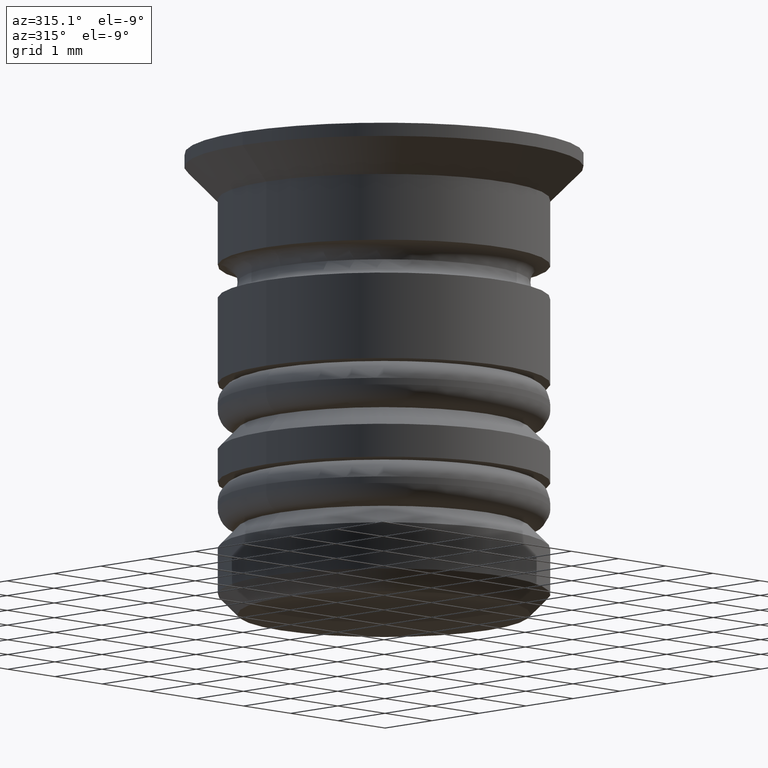
[diagram: clean part render]
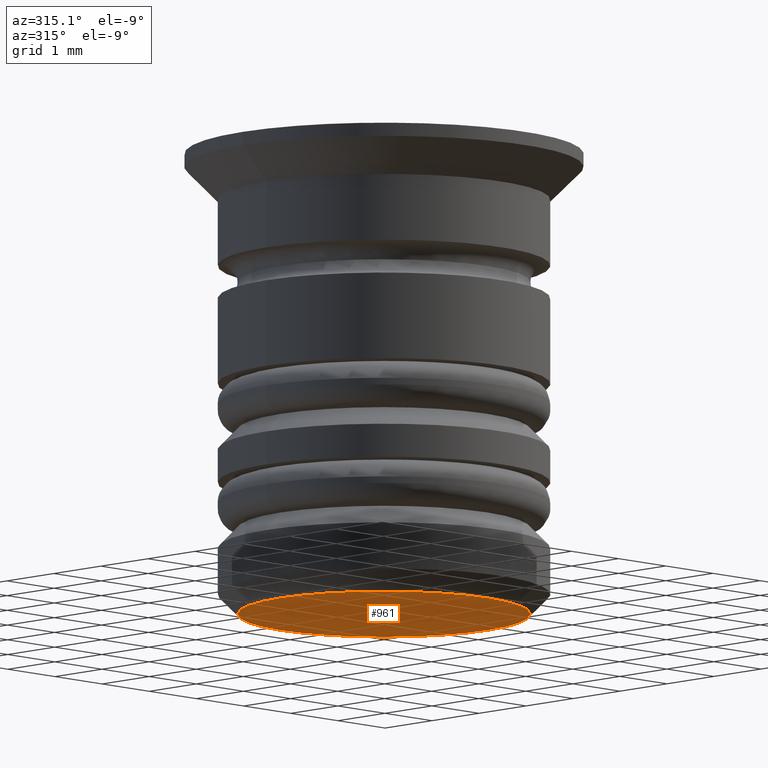
[diagram: same view with one face highlighted and labeled with its STEP entity id]
A machine part, auxiliary view. The second image highlights one B-rep face of the part: STEP entity #961.
In plain terms, the highlighted planar face has unit normal (0, 0, -1).
Its self-contained STEP definition (entity closure, byte-faithful):
#123 = VERTEX_POINT ( 'NONE', #209 ) ;
#155 = DIRECTION ( 'NONE',  ( -1.000000000000000000, 0.000000000000000000, -0.000000000000000000 ) ) ;
#201 = EDGE_LOOP ( 'NONE', ( #679, #909 ) ) ;
#209 = CARTESIAN_POINT ( 'NONE',  ( -2.200000000000000622, 2.877919977996281306E-16, -7.000000000000000888 ) ) ;
#220 = DIRECTION ( 'NONE',  ( -1.000000000000000000, 0.000000000000000000, 0.000000000000000000 ) ) ;
#499 = DIRECTION ( 'NONE',  ( 0.000000000000000000, 0.000000000000000000, -1.000000000000000000 ) ) ;
#599 = VERTEX_POINT ( 'NONE', #1690 ) ;
#679 = ORIENTED_EDGE ( 'NONE', *, *, #1239, .T. ) ;
#690 = FACE_OUTER_BOUND ( 'NONE', #201, .T. ) ;
#768 = CIRCLE ( 'NONE', #1596, 2.200000000000000622 ) ;
#861 = AXIS2_PLACEMENT_3D ( 'NONE', #1231, #499, #220 ) ;
#909 = ORIENTED_EDGE ( 'NONE', *, *, #1384, .T. ) ;
#961 = ADVANCED_FACE ( 'NONE', ( #690 ), #1251, .T. ) ;
#1069 = AXIS2_PLACEMENT_3D ( 'NONE', #1134, #1259, #155 ) ;
#1134 = CARTESIAN_POINT ( 'NONE',  ( 0.000000000000000000, 2.500000000000001776, -7.000000000000000888 ) ) ;
#1231 = CARTESIAN_POINT ( 'NONE',  ( 0.000000000000000000, 0.000000000000000000, -7.000000000000000888 ) ) ;
#1239 = EDGE_CURVE ( 'NONE', #599, #123, #1748, .T. ) ;
#1251 = PLANE ( 'NONE',  #1069 ) ;
#1259 = DIRECTION ( 'NONE',  ( 0.000000000000000000, 0.000000000000000000, -1.000000000000000000 ) ) ;
#1384 = EDGE_CURVE ( 'NONE', #123, #599, #768, .T. ) ;
#1407 = DIRECTION ( 'NONE',  ( -1.000000000000000000, 0.000000000000000000, 0.000000000000000000 ) ) ;
#1523 = DIRECTION ( 'NONE',  ( 0.000000000000000000, 0.000000000000000000, -1.000000000000000000 ) ) ;
#1596 = AXIS2_PLACEMENT_3D ( 'NONE', #1825, #1523, #1407 ) ;
#1690 = CARTESIAN_POINT ( 'NONE',  ( 2.200000000000000622, 0.000000000000000000, -7.000000000000000888 ) ) ;
#1748 = CIRCLE ( 'NONE', #861, 2.200000000000000622 ) ;
#1825 = CARTESIAN_POINT ( 'NONE',  ( 0.000000000000000000, 0.000000000000000000, -7.000000000000000888 ) ) ;